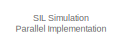
[diagram: root canvas - part 1/4, top center region]
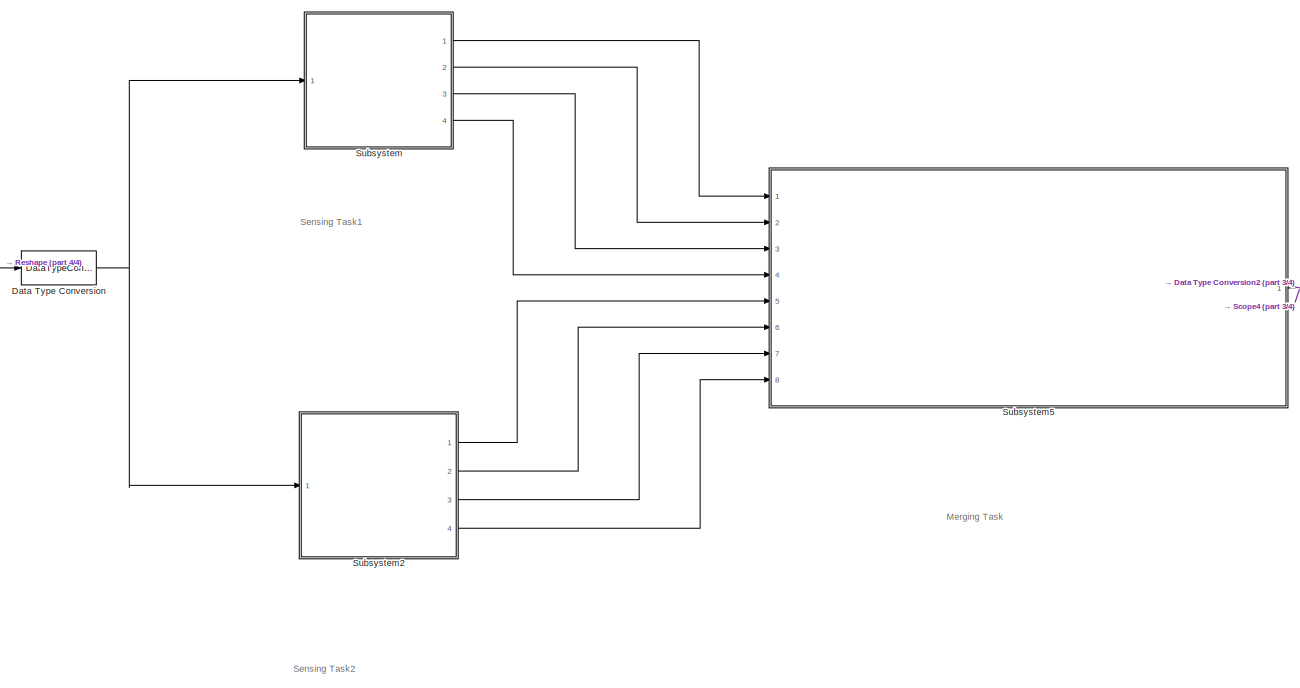
[diagram: root canvas - part 2/4, bottom center region]
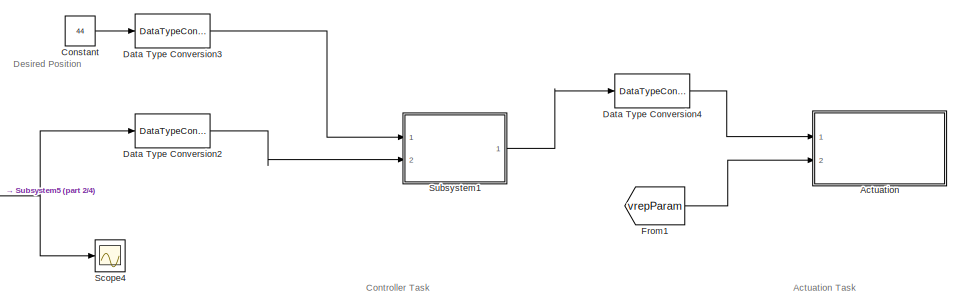
[diagram: root canvas - part 3/4, middle right region]
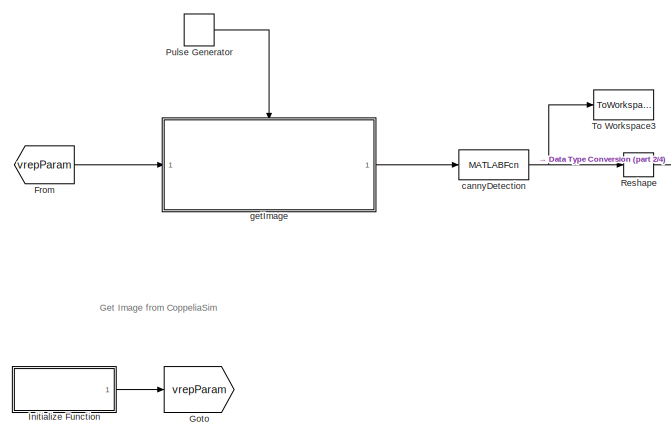
[diagram: root canvas - part 4/4, middle left region]
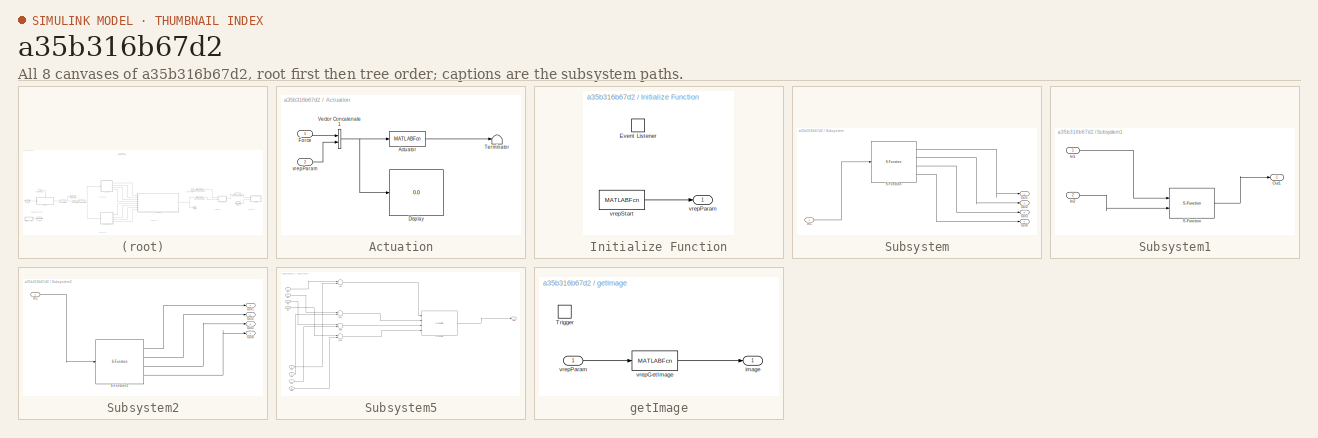
[diagram: thumbnail index - all 8 canvases of the model, root first then tree order]
MODEL slx_a35b316b67d2
KIND model
CONFIG AbsTol = auto
CONFIG EnableMultiTasking = off
CONFIG FixedStep = 1
CONFIG MaxStep = auto
CONFIG MinStep = auto
CONFIG RelTol = 1e-3
CONFIG SampleTimeConstraint = Unconstrained
CONFIG Solver = FixedStepAuto
CONFIG SolverName = FixedStepAuto
CONFIG StartTime = 0
CONFIG StopTime = 0
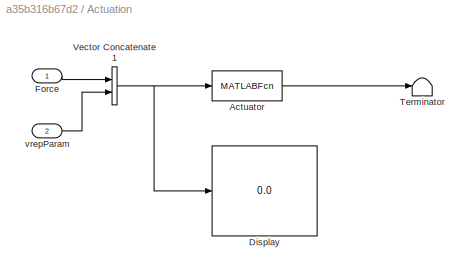
BLOCK [SubSystem] Actuation
  Ports = [2]
  RequestExecContextInheritance = off
BLOCK [MATLABFcn] Actuation/Actuator 
  MATLABFcn = vrepUpdateActuator
  Output1D = off
  OutputDimensions = 1
  Ports = [1, 1]
BLOCK [Display] Actuation/Display
  Decimation = 1
  Ports = [1]
BLOCK [Inport] Actuation/Force
  IconDisplay = Port number
BLOCK [Terminator] Actuation/Terminator
BLOCK [Concatenate] Actuation/Vector Concatenate1
  Ports = [2, 1]
BLOCK [Inport] Actuation/vrepParam
  IconDisplay = Port number
  Port = 2
BLOCK [Constant] Constant
  Value = 44
BLOCK [DataTypeConversion] Data Type Conversion
  OutDataTypeStr = uint8
  RndMeth = Floor
  SaturateOnIntegerOverflow = off
BLOCK [DataTypeConversion] Data Type Conversion2
  OutDataTypeStr = single
  RndMeth = Floor
  SaturateOnIntegerOverflow = off
BLOCK [DataTypeConversion] Data Type Conversion3
  OutDataTypeStr = single
  RndMeth = Floor
  SaturateOnIntegerOverflow = off
BLOCK [DataTypeConversion] Data Type Conversion4
  OutDataTypeStr = double
  RndMeth = Floor
  SaturateOnIntegerOverflow = off
BLOCK [From] From
  GotoTag = vrepParam
BLOCK [From] From1
  GotoTag = vrepParam
BLOCK [Goto] Goto
  GotoTag = vrepParam
BLOCK [SubSystem] Initialize Function
  Ports = [0, 1]
  RequestExecContextInheritance = off
  TreatAsAtomicUnit = on
BLOCK [EventListener] Initialize Function/Event Listener
  DisableCoverage = on
  EventName = reset
BLOCK [Outport] Initialize Function/vrepParam 
  IconDisplay = Port number
BLOCK [MATLABFcn] Initialize Function/vrepStart 
  MATLABFcn = vrepStart
  Ports = [1, 1]
BLOCK [DiscretePulseGenerator] Pulse Generator
  Ports = [0, 1]
  SampleTime = sim_step
BLOCK [Reshape] Reshape
  Ports = [1, 1]
BLOCK [Scope] Scope4
  Floating = off
  NumInputPorts = 1
  Ports = [1]
  ScopeSpecificationString = Simulink.scopes.TimeScopeBlockCfg('CurrentConfiguration', extmgr.ConfigurationSet(extmgr.Configuration('Core','General UI',true),extmgr.Configuration('Core','Source UI',true),extmgr.Configuration('Sources','WiredSimulink',true,'DataLoggingVariableName','ScopeData1'),extmgr.Configuration('Visuals','Time Domain',true,'SerializedDisplays',{struct('MinYLimReal','-5.5','MaxYLimReal','49.5','YLabelReal'...<+1529ch>
BLOCK [SubSystem] Subsystem
  Ports = [1, 4]
  RequestExecContextInheritance = off
BLOCK [Inport] Subsystem/In1
  IconDisplay = Port number
BLOCK [Outport] Subsystem/Out1
  IconDisplay = Port number
BLOCK [Outport] Subsystem/Out2
  IconDisplay = Port number
  Port = 2
BLOCK [Outport] Subsystem/Out3
  IconDisplay = Port number
  Port = 3
BLOCK [Outport] Subsystem/Out4
  IconDisplay = Port number
  Port = 4
BLOCK [S-Function] Subsystem/S-Function
  EnableBusSupport = off
  FunctionName = sensing_task1_Sfunction
  Ports = [1, 4]
  SFcnIsStateOwnerBlock = off
  SFunctionDeploymentMode = off
BLOCK [SubSystem] Subsystem1
  Ports = [2, 1]
  RequestExecContextInheritance = off
BLOCK [Inport] Subsystem1/In1
  IconDisplay = Port number
BLOCK [Inport] Subsystem1/In2
  IconDisplay = Port number
  Port = 2
BLOCK [Outport] Subsystem1/Out1
  IconDisplay = Port number
BLOCK [S-Function] Subsystem1/S-Function
  EnableBusSupport = off
  FunctionName = controller_task_Sfunction
  Ports = [2, 1]
  SFcnIsStateOwnerBlock = off
  SFunctionDeploymentMode = off
BLOCK [SubSystem] Subsystem2
  Ports = [1, 4]
  RequestExecContextInheritance = off
BLOCK [Inport] Subsystem2/In1
  IconDisplay = Port number
BLOCK [Outport] Subsystem2/Out1
  IconDisplay = Port number
BLOCK [Outport] Subsystem2/Out2
  IconDisplay = Port number
  Port = 2
BLOCK [Outport] Subsystem2/Out3
  IconDisplay = Port number
  Port = 3
BLOCK [Outport] Subsystem2/Out4
  IconDisplay = Port number
  Port = 4
BLOCK [S-Function] Subsystem2/S-Function1
  EnableBusSupport = off
  FunctionName = sensing_task2_Sfunction
  Ports = [1, 4]
  SFcnIsStateOwnerBlock = off
  SFunctionDeploymentMode = off
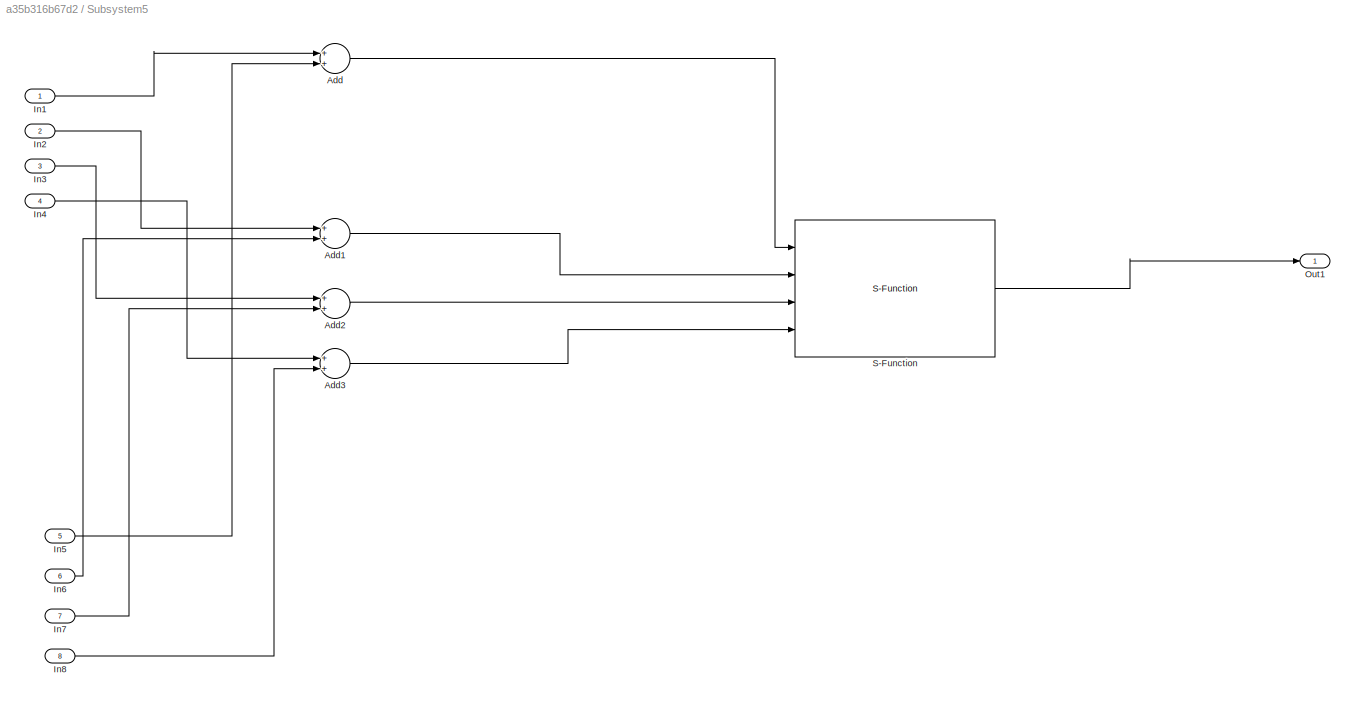
BLOCK [SubSystem] Subsystem5
  Ports = [8, 1]
  RequestExecContextInheritance = off
BLOCK [Sum] Subsystem5/Add
  InputSameDT = off
  OutDataTypeStr = Inherit: Inherit via internal rule
  Ports = [2, 1]
  SaturateOnIntegerOverflow = off
BLOCK [Sum] Subsystem5/Add1
  InputSameDT = off
  OutDataTypeStr = Inherit: Inherit via internal rule
  Ports = [2, 1]
  SaturateOnIntegerOverflow = off
BLOCK [Sum] Subsystem5/Add2
  InputSameDT = off
  OutDataTypeStr = Inherit: Inherit via internal rule
  Ports = [2, 1]
  SaturateOnIntegerOverflow = off
BLOCK [Sum] Subsystem5/Add3
  InputSameDT = off
  OutDataTypeStr = Inherit: Inherit via internal rule
  Ports = [2, 1]
  SaturateOnIntegerOverflow = off
BLOCK [Inport] Subsystem5/In1
  IconDisplay = Port number
BLOCK [Inport] Subsystem5/In2
  IconDisplay = Port number
  Port = 2
BLOCK [Inport] Subsystem5/In3
  IconDisplay = Port number
  Port = 3
BLOCK [Inport] Subsystem5/In4
  IconDisplay = Port number
  Port = 4
BLOCK [Inport] Subsystem5/In5
  IconDisplay = Port number
  Port = 5
BLOCK [Inport] Subsystem5/In6
  IconDisplay = Port number
  Port = 6
BLOCK [Inport] Subsystem5/In7
  IconDisplay = Port number
  Port = 7
BLOCK [Inport] Subsystem5/In8
  IconDisplay = Port number
  Port = 8
BLOCK [Outport] Subsystem5/Out1
  IconDisplay = Port number
BLOCK [S-Function] Subsystem5/S-Function
  EnableBusSupport = off
  FunctionName = merging_task_Sfunction
  Ports = [4, 1]
  SFcnIsStateOwnerBlock = off
  SFunctionDeploymentMode = off
BLOCK [ToWorkspace] To Workspace3
  FixptAsFi = on
  MaxDataPoints = 1
  Ports = [1]
  SampleTime = -1
  Save2DSignal = 3-D array (concatenate along third dimension)
  VariableName = simout2
BLOCK [MATLABFcn] cannyDetection 
  MATLABFcn = cannyDetection
  Output1D = off
  OutputDimensions = [142,88]
  Ports = [1, 1]
BLOCK [SubSystem] getImage
  Ports = [1, 1, 0, 1]
  RequestExecContextInheritance = off
BLOCK [TriggerPort] getImage/Trigger
  PortDimensions = 1
  Ports = []
  StatesWhenEnabling = held
  VariantControl = Variant
BLOCK [Outport] getImage/image
  IconDisplay = Port number
BLOCK [MATLABFcn] getImage/vrepGetImage
  MATLABFcn = vrepGetImage
  Output1D = off
  OutputDimensions = [142,88]
  Ports = [1, 1]
BLOCK [Inport] getImage/vrepParam
  IconDisplay = Port number
ANNOTATION (root): SIL Simulation Parallel Implementation
ANNOTATION (root): Actuation Task
ANNOTATION (root): Controller Task
ANNOTATION (root): Desired Position
ANNOTATION (root): Get Image from CoppeliaSim
ANNOTATION (root): Merging Task
ANNOTATION (root): Sensing Task1
ANNOTATION (root): Sensing Task2
LINE Actuation/Actuator :1 -> Actuation/Terminator:1
LINE Actuation/Force:1 -> Actuation/Vector Concatenate1:1
NET Actuation/Vector Concatenate1:1 -> Actuation/Actuator :1, Actuation/Display:1
LINE Actuation/vrepParam:1 -> Actuation/Vector Concatenate1:2
LINE Constant:1 -> Data Type Conversion3:1
LINE Data Type Conversion2:1 -> Subsystem1:2
LINE Data Type Conversion3:1 -> Subsystem1:1
LINE Data Type Conversion4:1 -> Actuation:1
NET Data Type Conversion:1 -> Subsystem2:1, Subsystem:1
LINE From1:1 -> Actuation:2
LINE From:1 -> getImage:1
LINE Initialize Function/vrepStart :1 -> Initialize Function/vrepParam :1
LINE Initialize Function:1 -> Goto:1
LINE Pulse Generator:1 -> getImage:trigger
LINE Reshape:1 -> Data Type Conversion:1
LINE Subsystem/In1:1 -> Subsystem/S-Function:1
LINE Subsystem/S-Function:1 -> Subsystem/Out1:1
LINE Subsystem/S-Function:2 -> Subsystem/Out2:1
LINE Subsystem/S-Function:3 -> Subsystem/Out3:1
LINE Subsystem/S-Function:4 -> Subsystem/Out4:1
LINE Subsystem1/In1:1 -> Subsystem1/S-Function:1
LINE Subsystem1/In2:1 -> Subsystem1/S-Function:2
LINE Subsystem1/S-Function:1 -> Subsystem1/Out1:1
LINE Subsystem1:1 -> Data Type Conversion4:1
LINE Subsystem2/In1:1 -> Subsystem2/S-Function1:1
LINE Subsystem2/S-Function1:1 -> Subsystem2/Out1:1
LINE Subsystem2/S-Function1:2 -> Subsystem2/Out2:1
LINE Subsystem2/S-Function1:3 -> Subsystem2/Out3:1
LINE Subsystem2/S-Function1:4 -> Subsystem2/Out4:1
LINE Subsystem2:1 -> Subsystem5:5
LINE Subsystem2:2 -> Subsystem5:6
LINE Subsystem2:3 -> Subsystem5:7
LINE Subsystem2:4 -> Subsystem5:8
LINE Subsystem5/Add1:1 -> Subsystem5/S-Function:2
LINE Subsystem5/Add2:1 -> Subsystem5/S-Function:3
LINE Subsystem5/Add3:1 -> Subsystem5/S-Function:4
LINE Subsystem5/Add:1 -> Subsystem5/S-Function:1
LINE Subsystem5/In1:1 -> Subsystem5/Add:1
LINE Subsystem5/In2:1 -> Subsystem5/Add1:1
LINE Subsystem5/In3:1 -> Subsystem5/Add2:1
LINE Subsystem5/In4:1 -> Subsystem5/Add3:1
LINE Subsystem5/In5:1 -> Subsystem5/Add:2
LINE Subsystem5/In6:1 -> Subsystem5/Add1:2
LINE Subsystem5/In7:1 -> Subsystem5/Add2:2
LINE Subsystem5/In8:1 -> Subsystem5/Add3:2
LINE Subsystem5/S-Function:1 -> Subsystem5/Out1:1
NET Subsystem5:1 -> Data Type Conversion2:1, Scope4:1
LINE Subsystem:1 -> Subsystem5:1
LINE Subsystem:2 -> Subsystem5:2
LINE Subsystem:3 -> Subsystem5:3
LINE Subsystem:4 -> Subsystem5:4
NET cannyDetection :1 -> Reshape:1, To Workspace3:1
LINE getImage/vrepGetImage:1 -> getImage/image:1
LINE getImage/vrepParam:1 -> getImage/vrepGetImage:1
LINE getImage:1 -> cannyDetection :1
note: NET lines group one-source signal fan-out (src -> all destinations, sorted); 1:1 wires keep LINE
